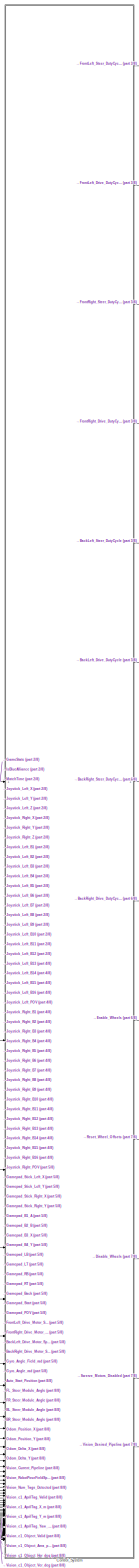
[diagram: root canvas - part 1/8, center side, full height]
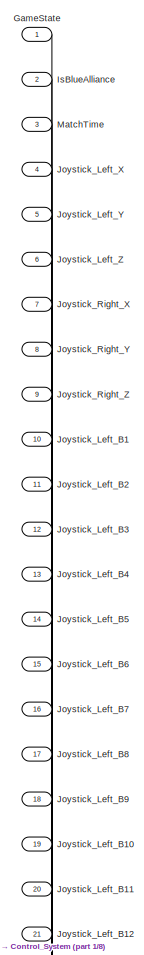
[diagram: root canvas - part 2/8, top left region]
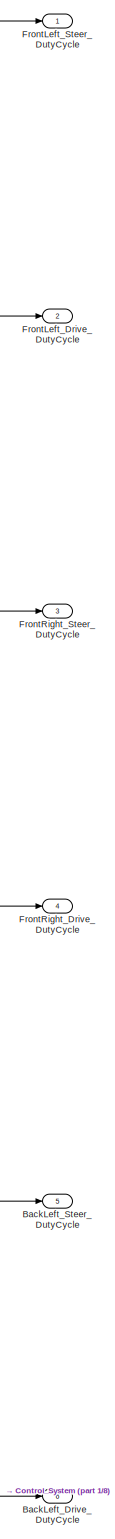
[diagram: root canvas - part 3/8, top right region]
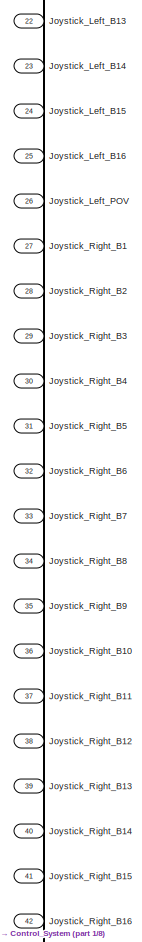
[diagram: root canvas - part 4/8, middle left region]
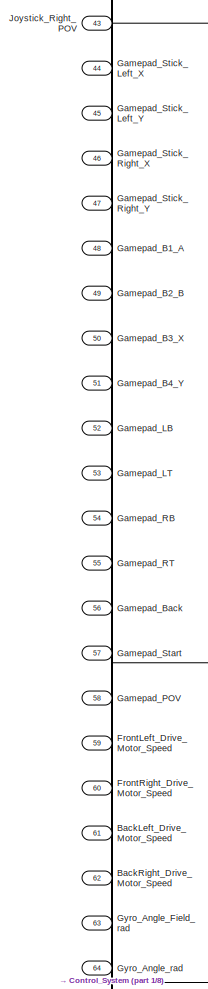
[diagram: root canvas - part 5/8, middle left region]
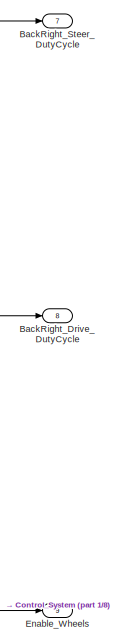
[diagram: root canvas - part 6/8, middle right region]
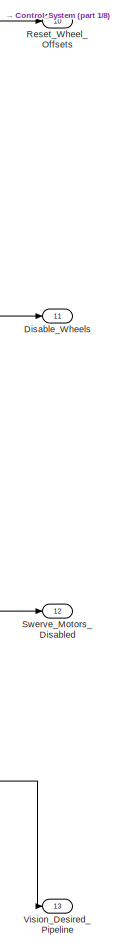
[diagram: root canvas - part 7/8, bottom right region]
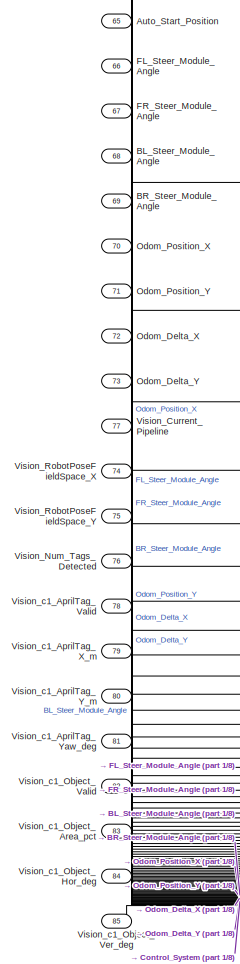
[diagram: root canvas - part 8/8, bottom left region]
MODEL slx_e881640c22d4
KIND model
CONFIG AbsTol = auto
CONFIG EnableMultiTasking = off
CONFIG FixedStep = t_sample
CONFIG MaxStep = auto
CONFIG MinStep = auto
CONFIG RelTol = 1e-3
CONFIG SampleTimeConstraint = Unconstrained
CONFIG SolverName = FixedStepDiscrete
CONFIG StartTime = 0.0
CONFIG StopTime = inf
BLOCK [Inport] Auto_Start_Position
  Port = 65
BLOCK [Inport] BL_Steer_Module_Angle
  Port = 68
BLOCK [Inport] BR_Steer_Module_Angle
  Port = 69
BLOCK [Outport] BackLeft_Drive_DutyCycle
  Port = 6
BLOCK [Inport] BackLeft_Drive_Motor_Speed
  Port = 61
BLOCK [Outport] BackLeft_Steer_DutyCycle
  Port = 5
BLOCK [Outport] BackRight_Drive_DutyCycle
  Port = 8
BLOCK [Inport] BackRight_Drive_Motor_Speed
  Port = 62
BLOCK [Outport] BackRight_Steer_DutyCycle
  Port = 7
BLOCK [SubSystem] Control_System
  RTWFcnName = Model_Step
  RTWFcnNameOpts = User specified
  RTWSystemCode = Nonreusable function
  ReferencedSubsystem = Robot_Control_sub
  SystemSampleTime = t_sample
BLOCK [Outport] Disable_Wheels
  Port = 11
BLOCK [Outport] Enable_Wheels
  Port = 9
BLOCK [Inport] FL_Steer_Module_Angle
  Port = 66
BLOCK [Inport] FR_Steer_Module_Angle
  Port = 67
BLOCK [Outport] FrontLeft_Drive_DutyCycle
  Port = 2
BLOCK [Inport] FrontLeft_Drive_Motor_Speed
  Port = 59
BLOCK [Outport] FrontLeft_Steer_DutyCycle
BLOCK [Outport] FrontRight_Drive_DutyCycle
  Port = 4
BLOCK [Inport] FrontRight_Drive_Motor_Speed
  Port = 60
BLOCK [Outport] FrontRight_Steer_DutyCycle
  Port = 3
BLOCK [Inport] GameState
BLOCK [Inport] Gamepad_B1_A
  Port = 48
BLOCK [Inport] Gamepad_B2_B
  Port = 49
BLOCK [Inport] Gamepad_B3_X
  Port = 50
BLOCK [Inport] Gamepad_B4_Y
  Port = 51
BLOCK [Inport] Gamepad_Back
  Port = 56
BLOCK [Inport] Gamepad_LB
  Port = 52
BLOCK [Inport] Gamepad_LT
  Port = 53
BLOCK [Inport] Gamepad_POV
  Port = 58
BLOCK [Inport] Gamepad_RB
  Port = 54
BLOCK [Inport] Gamepad_RT
  Port = 55
BLOCK [Inport] Gamepad_Start
  Port = 57
BLOCK [Inport] Gamepad_Stick_Left_X
  Port = 44
BLOCK [Inport] Gamepad_Stick_Left_Y
  Port = 45
BLOCK [Inport] Gamepad_Stick_Right_X
  Port = 46
BLOCK [Inport] Gamepad_Stick_Right_Y
  Port = 47
BLOCK [Inport] Gyro_Angle_Field_rad
  Port = 63
BLOCK [Inport] Gyro_Angle_rad
  Port = 64
BLOCK [Inport] IsBlueAlliance
  Port = 2
BLOCK [Inport] Joystick_Left_B1
  Port = 10
BLOCK [Inport] Joystick_Left_B10
  Port = 19
BLOCK [Inport] Joystick_Left_B11
  Port = 20
BLOCK [Inport] Joystick_Left_B12
  Port = 21
BLOCK [Inport] Joystick_Left_B13
  Port = 22
BLOCK [Inport] Joystick_Left_B14
  Port = 23
BLOCK [Inport] Joystick_Left_B15
  Port = 24
BLOCK [Inport] Joystick_Left_B16
  Port = 25
BLOCK [Inport] Joystick_Left_B2
  Port = 11
BLOCK [Inport] Joystick_Left_B3
  Port = 12
BLOCK [Inport] Joystick_Left_B4
  Port = 13
BLOCK [Inport] Joystick_Left_B5
  Port = 14
BLOCK [Inport] Joystick_Left_B6
  Port = 15
BLOCK [Inport] Joystick_Left_B7
  Port = 16
BLOCK [Inport] Joystick_Left_B8
  Port = 17
BLOCK [Inport] Joystick_Left_B9
  Port = 18
BLOCK [Inport] Joystick_Left_POV
  Port = 26
BLOCK [Inport] Joystick_Left_X
  Port = 4
BLOCK [Inport] Joystick_Left_Y
  Port = 5
BLOCK [Inport] Joystick_Left_Z
  Port = 6
BLOCK [Inport] Joystick_Right_B1
  Port = 27
BLOCK [Inport] Joystick_Right_B10
  Port = 36
BLOCK [Inport] Joystick_Right_B11
  Port = 37
BLOCK [Inport] Joystick_Right_B12
  Port = 38
BLOCK [Inport] Joystick_Right_B13
  Port = 39
BLOCK [Inport] Joystick_Right_B14
  Port = 40
BLOCK [Inport] Joystick_Right_B15
  Port = 41
BLOCK [Inport] Joystick_Right_B16
  Port = 42
BLOCK [Inport] Joystick_Right_B2
  Port = 28
BLOCK [Inport] Joystick_Right_B3
  Port = 29
BLOCK [Inport] Joystick_Right_B4
  Port = 30
BLOCK [Inport] Joystick_Right_B5
  Port = 31
BLOCK [Inport] Joystick_Right_B6
  Port = 32
BLOCK [Inport] Joystick_Right_B7
  Port = 33
BLOCK [Inport] Joystick_Right_B8
  Port = 34
BLOCK [Inport] Joystick_Right_B9
  Port = 35
BLOCK [Inport] Joystick_Right_POV
  Port = 43
BLOCK [Inport] Joystick_Right_X
  Port = 7
BLOCK [Inport] Joystick_Right_Y
  Port = 8
BLOCK [Inport] Joystick_Right_Z
  Port = 9
BLOCK [Inport] MatchTime
  Port = 3
BLOCK [Inport] Odom_Delta_X
  Port = 72
BLOCK [Inport] Odom_Delta_Y
  Port = 73
BLOCK [Inport] Odom_Position_X
  Port = 70
BLOCK [Inport] Odom_Position_Y
  Port = 71
BLOCK [Outport] Reset_Wheel_Offsets
  Port = 10
BLOCK [Outport] Swerve_Motors_Disabled
  Port = 12
BLOCK [Inport] Vision_Current_Pipeline
  Port = 77
BLOCK [Outport] Vision_Desired_Pipeline
  Port = 13
BLOCK [Inport] Vision_Num_Tags_Detected
  Port = 76
BLOCK [Inport] Vision_RobotPoseFieldSpace_X
  Port = 74
BLOCK [Inport] Vision_RobotPoseFieldSpace_Y
  Port = 75
BLOCK [Inport] Vision_c1_AprilTag_Valid
  Port = 78
BLOCK [Inport] Vision_c1_AprilTag_X_m
  Port = 79
BLOCK [Inport] Vision_c1_AprilTag_Y_m
  Port = 80
BLOCK [Inport] Vision_c1_AprilTag_Yaw_deg
  Port = 81
BLOCK [Inport] Vision_c1_Object_Area_pct
  Port = 83
BLOCK [Inport] Vision_c1_Object_Hor_deg
  Port = 84
BLOCK [Inport] Vision_c1_Object_Valid
  Port = 82
BLOCK [Inport] Vision_c1_Object_Ver_deg
  Port = 85
LINE Auto_Start_Position:1 -> Control_System:65
LINE BL_Steer_Module_Angle:1 -> Control_System:68
LINE BR_Steer_Module_Angle:1 -> Control_System:69
LINE BackLeft_Drive_Motor_Speed:1 -> Control_System:61
LINE BackRight_Drive_Motor_Speed:1 -> Control_System:62
LINE Control_System:1 -> FrontLeft_Steer_DutyCycle:1
LINE Control_System:10 -> Reset_Wheel_Offsets:1
LINE Control_System:11 -> Disable_Wheels:1
LINE Control_System:12 -> Swerve_Motors_Disabled:1
LINE Control_System:13 -> Vision_Desired_Pipeline:1
LINE Control_System:2 -> FrontLeft_Drive_DutyCycle:1
LINE Control_System:3 -> FrontRight_Steer_DutyCycle:1
LINE Control_System:4 -> FrontRight_Drive_DutyCycle:1
LINE Control_System:5 -> BackLeft_Steer_DutyCycle:1
LINE Control_System:6 -> BackLeft_Drive_DutyCycle:1
LINE Control_System:7 -> BackRight_Steer_DutyCycle:1
LINE Control_System:8 -> BackRight_Drive_DutyCycle:1
LINE Control_System:9 -> Enable_Wheels:1
LINE FL_Steer_Module_Angle:1 -> Control_System:66
LINE FR_Steer_Module_Angle:1 -> Control_System:67
LINE FrontLeft_Drive_Motor_Speed:1 -> Control_System:59
LINE FrontRight_Drive_Motor_Speed:1 -> Control_System:60
LINE GameState:1 -> Control_System:1
LINE Gamepad_B1_A:1 -> Control_System:48
LINE Gamepad_B2_B:1 -> Control_System:49
LINE Gamepad_B3_X:1 -> Control_System:50
LINE Gamepad_B4_Y:1 -> Control_System:51
LINE Gamepad_Back:1 -> Control_System:56
LINE Gamepad_LB:1 -> Control_System:52
LINE Gamepad_LT:1 -> Control_System:53
LINE Gamepad_POV:1 -> Control_System:58
LINE Gamepad_RB:1 -> Control_System:54
LINE Gamepad_RT:1 -> Control_System:55
LINE Gamepad_Start:1 -> Control_System:57
LINE Gamepad_Stick_Left_X:1 -> Control_System:44
LINE Gamepad_Stick_Left_Y:1 -> Control_System:45
LINE Gamepad_Stick_Right_X:1 -> Control_System:46
LINE Gamepad_Stick_Right_Y:1 -> Control_System:47
LINE Gyro_Angle_Field_rad:1 -> Control_System:63
LINE Gyro_Angle_rad:1 -> Control_System:64
LINE IsBlueAlliance:1 -> Control_System:2
LINE Joystick_Left_B10:1 -> Control_System:19
LINE Joystick_Left_B11:1 -> Control_System:20
LINE Joystick_Left_B12:1 -> Control_System:21
LINE Joystick_Left_B13:1 -> Control_System:22
LINE Joystick_Left_B14:1 -> Control_System:23
LINE Joystick_Left_B15:1 -> Control_System:24
LINE Joystick_Left_B16:1 -> Control_System:25
LINE Joystick_Left_B1:1 -> Control_System:10
LINE Joystick_Left_B2:1 -> Control_System:11
LINE Joystick_Left_B3:1 -> Control_System:12
LINE Joystick_Left_B4:1 -> Control_System:13
LINE Joystick_Left_B5:1 -> Control_System:14
LINE Joystick_Left_B6:1 -> Control_System:15
LINE Joystick_Left_B7:1 -> Control_System:16
LINE Joystick_Left_B8:1 -> Control_System:17
LINE Joystick_Left_B9:1 -> Control_System:18
LINE Joystick_Left_POV:1 -> Control_System:26
LINE Joystick_Left_X:1 -> Control_System:4
LINE Joystick_Left_Y:1 -> Control_System:5
LINE Joystick_Left_Z:1 -> Control_System:6
LINE Joystick_Right_B10:1 -> Control_System:36
LINE Joystick_Right_B11:1 -> Control_System:37
LINE Joystick_Right_B12:1 -> Control_System:38
LINE Joystick_Right_B13:1 -> Control_System:39
LINE Joystick_Right_B14:1 -> Control_System:40
LINE Joystick_Right_B15:1 -> Control_System:41
LINE Joystick_Right_B16:1 -> Control_System:42
LINE Joystick_Right_B1:1 -> Control_System:27
LINE Joystick_Right_B2:1 -> Control_System:28
LINE Joystick_Right_B3:1 -> Control_System:29
LINE Joystick_Right_B4:1 -> Control_System:30
LINE Joystick_Right_B5:1 -> Control_System:31
LINE Joystick_Right_B6:1 -> Control_System:32
LINE Joystick_Right_B7:1 -> Control_System:33
LINE Joystick_Right_B8:1 -> Control_System:34
LINE Joystick_Right_B9:1 -> Control_System:35
LINE Joystick_Right_POV:1 -> Control_System:43
LINE Joystick_Right_X:1 -> Control_System:7
LINE Joystick_Right_Y:1 -> Control_System:8
LINE Joystick_Right_Z:1 -> Control_System:9
LINE MatchTime:1 -> Control_System:3
LINE Odom_Delta_X:1 -> Control_System:72
LINE Odom_Delta_Y:1 -> Control_System:73
LINE Odom_Position_X:1 -> Control_System:70
LINE Odom_Position_Y:1 -> Control_System:71
LINE Vision_Current_Pipeline:1 -> Control_System:74
LINE Vision_Num_Tags_Detected:1 -> Control_System:77
LINE Vision_RobotPoseFieldSpace_X:1 -> Control_System:75
LINE Vision_RobotPoseFieldSpace_Y:1 -> Control_System:76
LINE Vision_c1_AprilTag_Valid:1 -> Control_System:78
LINE Vision_c1_AprilTag_X_m:1 -> Control_System:79
LINE Vision_c1_AprilTag_Y_m:1 -> Control_System:80
LINE Vision_c1_AprilTag_Yaw_deg:1 -> Control_System:81
LINE Vision_c1_Object_Area_pct:1 -> Control_System:83
LINE Vision_c1_Object_Hor_deg:1 -> Control_System:84
LINE Vision_c1_Object_Valid:1 -> Control_System:82
LINE Vision_c1_Object_Ver_deg:1 -> Control_System:85
